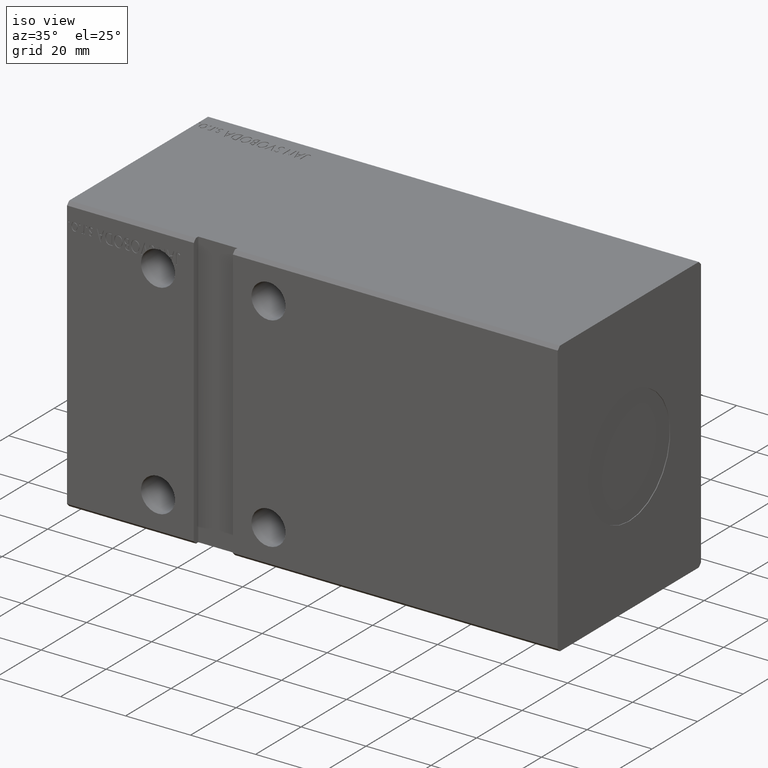
[diagram: clean part render]
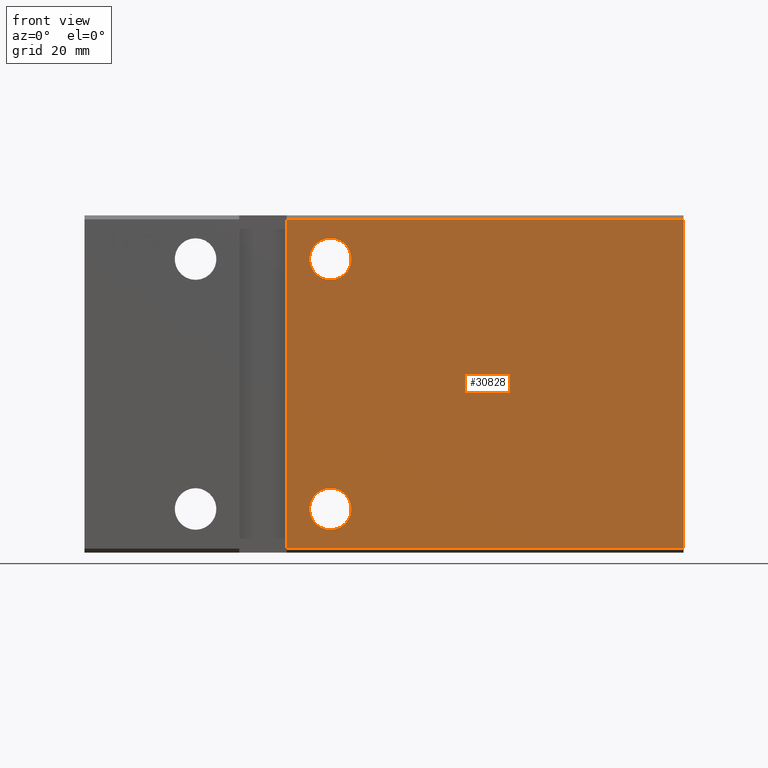
[diagram: tour spotlight — one face highlighted and labeled with its STEP entity id]
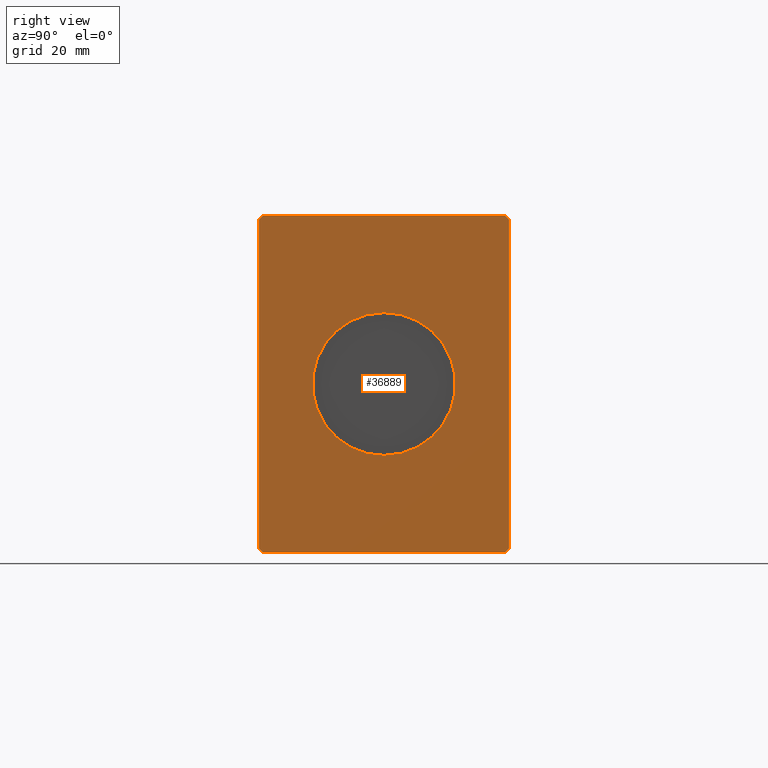
[diagram: tour spotlight — one face highlighted and labeled with its STEP entity id]
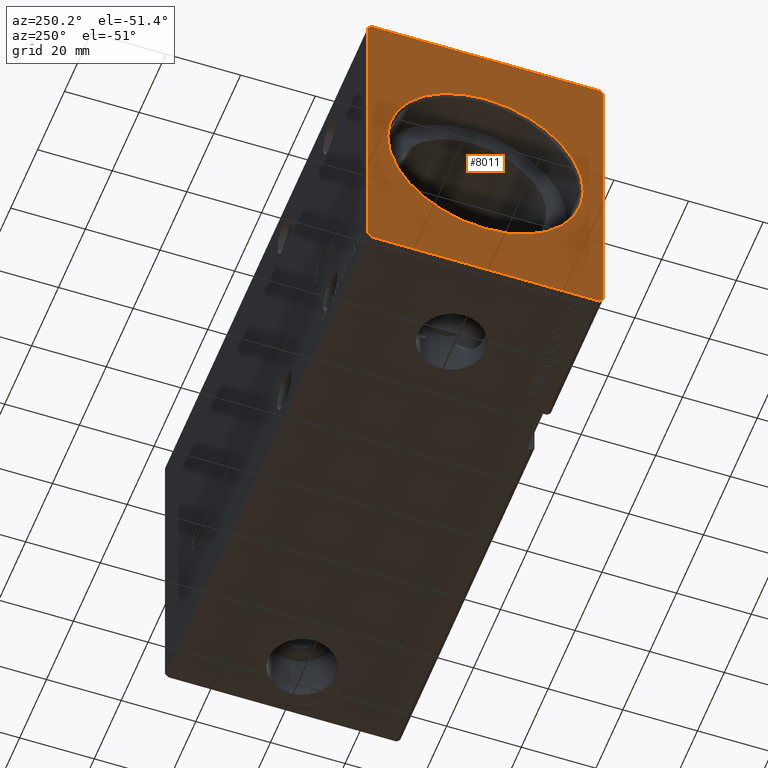
[diagram: tour spotlight — one face highlighted and labeled with its STEP entity id]
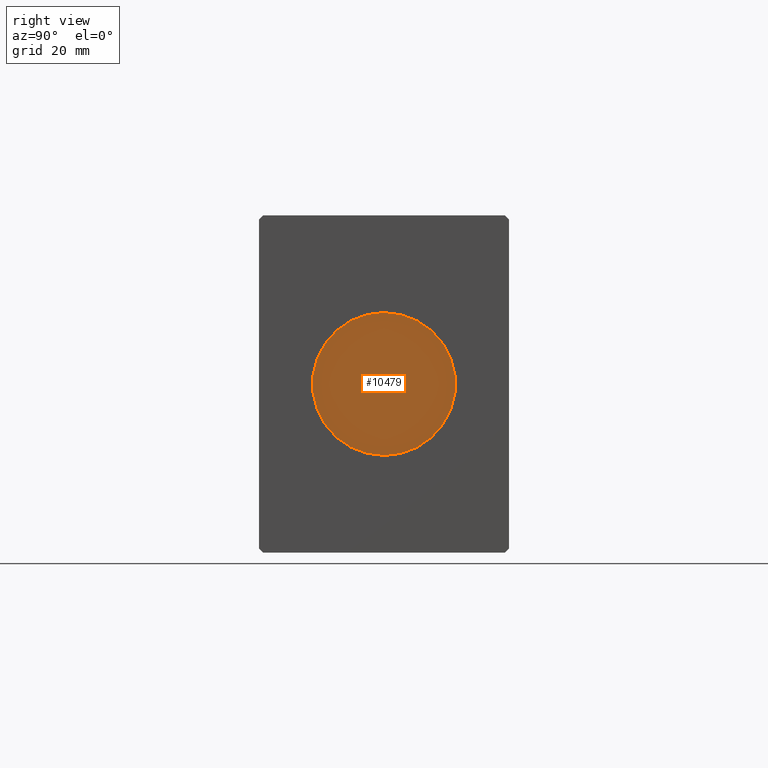
[diagram: tour spotlight — one face highlighted and labeled with its STEP entity id]
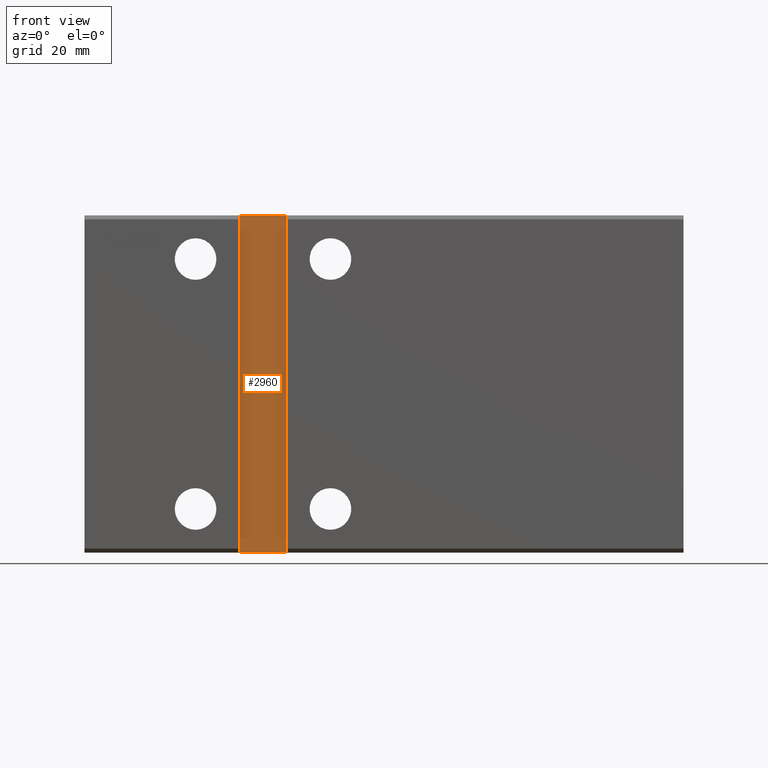
[diagram: tour spotlight — one face highlighted and labeled with its STEP entity id]
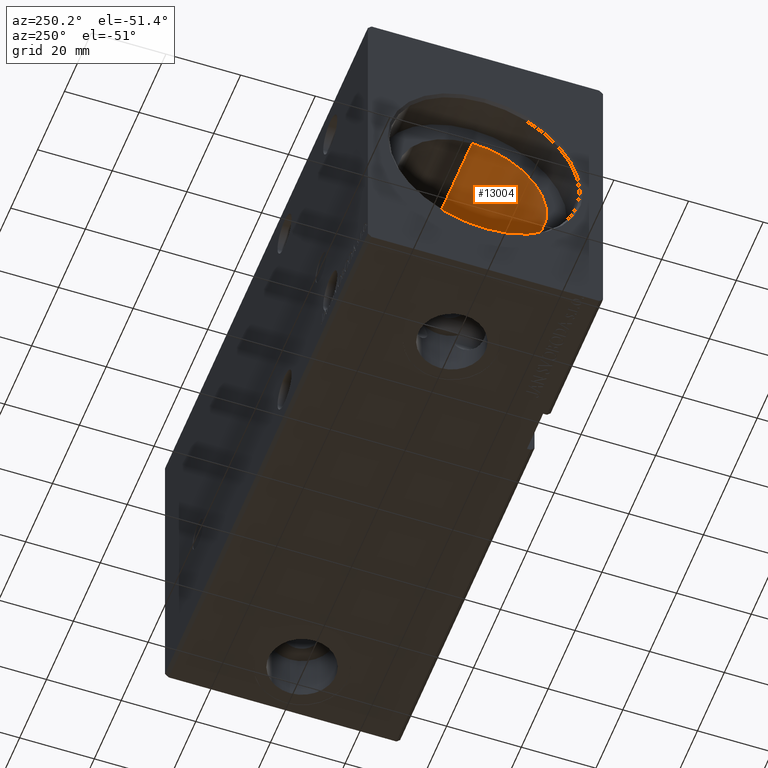
[diagram: tour spotlight — one face highlighted and labeled with its STEP entity id]
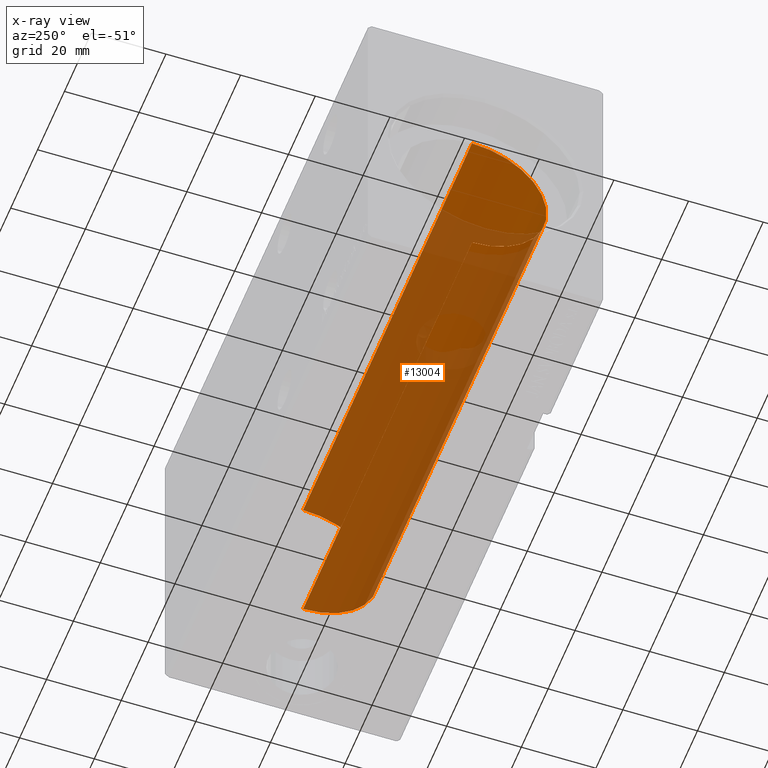
[diagram: x-ray of the same camera — body ghosted, this tour face saturated]
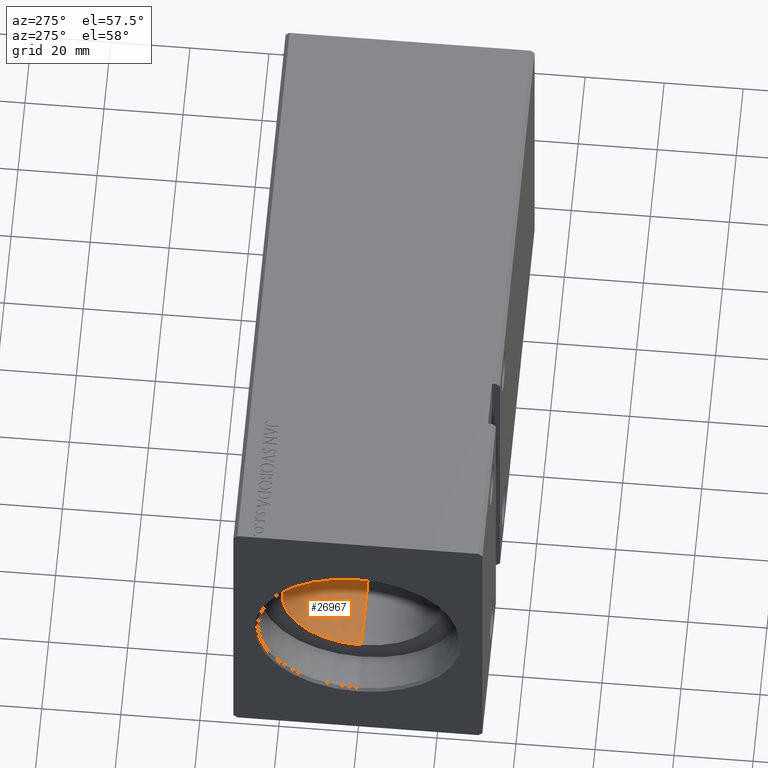
[diagram: tour spotlight — one face highlighted and labeled with its STEP entity id]
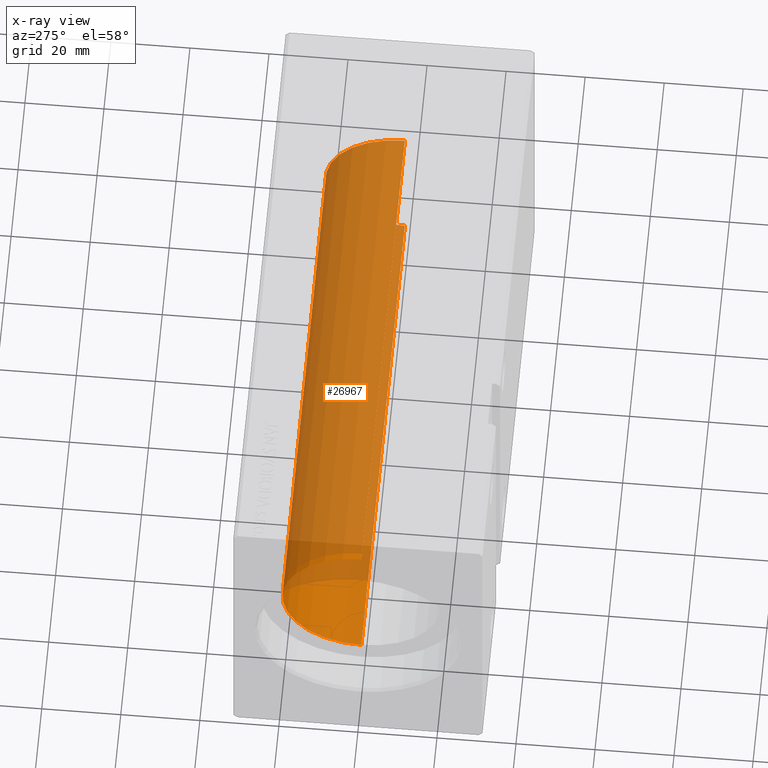
[diagram: x-ray of the same camera — body ghosted, this tour face saturated]
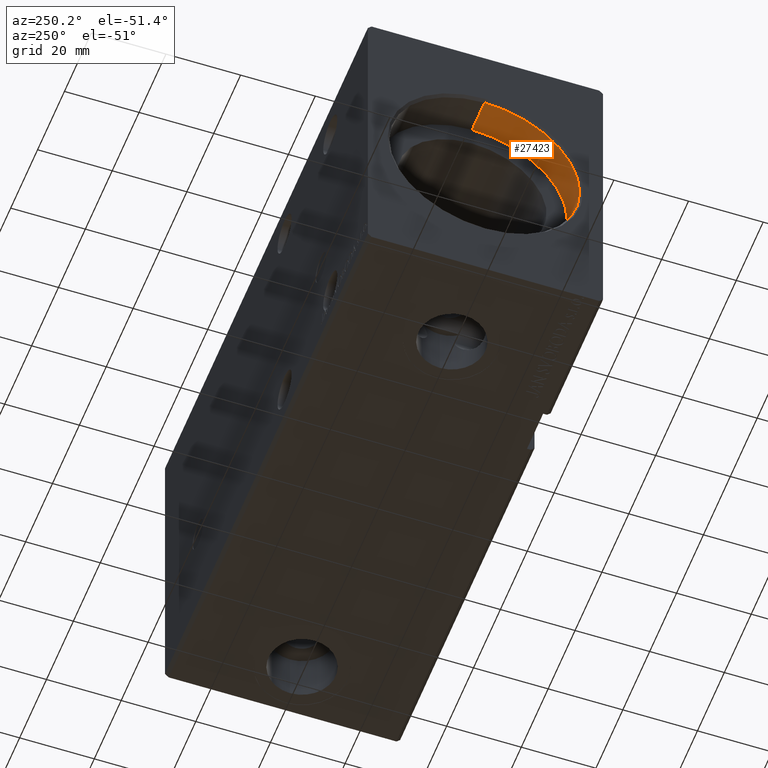
[diagram: tour spotlight — one face highlighted and labeled with its STEP entity id]
A machine part: a face-by-face anatomy tour. The part has 781 B-rep faces; the first image is the clean iso view, then the 8 largest visible faces are spotlighted one at a time (largest first), each with its STEP entity span.

Face 1 — front view, entity #30828. In plain terms, the highlighted planar face has unit normal (-0, 1, 0).
Definition (entity closure, byte-faithful):
#21 = CARTESIAN_POINT ( 'NONE',  ( 51.00000000000000000, -31.50000000000000000, 42.49999999999999289 ) ) ;
#161 = CARTESIAN_POINT ( 'NONE',  ( 151.0000000000000000, -31.50000000000000000, -41.50000000000000711 ) ) ;
#1122 = EDGE_CURVE ( 'NONE', #16240, #39760, #31434, .T. ) ;
#1634 = DIRECTION ( 'NONE',  ( 0.000000000000000000, 0.000000000000000000, 1.000000000000000000 ) ) ;
#1731 = AXIS2_PLACEMENT_3D ( 'NONE', #2849, #28518, #12777 ) ;
#2849 = CARTESIAN_POINT ( 'NONE',  ( 62.00000000000000000, -31.50000000000000000, 31.50000000000000000 ) ) ;
#3452 = VERTEX_POINT ( 'NONE', #31372 ) ;
#4691 = EDGE_CURVE ( 'NONE', #24432, #34464, #39747, .T. ) ;
#4791 = CARTESIAN_POINT ( 'NONE',  ( 51.00000000000000000, -31.50000000000000000, 41.49999999999999289 ) ) ;
#5090 = PLANE ( 'NONE',  #6165 ) ;
#5566 = ORIENTED_EDGE ( 'NONE', *, *, #17554, .T. ) ;
#6165 = AXIS2_PLACEMENT_3D ( 'NONE', #30347, #17505, #27438 ) ;
#7073 = EDGE_CURVE ( 'NONE', #26073, #31954, #15612, .T. ) ;
#7540 = CARTESIAN_POINT ( 'NONE',  ( 62.00000000000000711, -31.50000000000000000, -31.50000000000000000 ) ) ;
#8055 = CARTESIAN_POINT ( 'NONE',  ( 62.00000000000000000, -31.50000000000000000, 31.50000000000000000 ) ) ;
#8486 = DIRECTION ( 'NONE',  ( -0.000000000000000000, 1.000000000000000000, 0.000000000000000000 ) ) ;
#8937 = EDGE_CURVE ( 'NONE', #24432, #16240, #28117, .T. ) ;
#10535 = CIRCLE ( 'NONE', #40273, 5.249999999999997335 ) ;
#11144 = VECTOR ( 'NONE', #18865, 1000.000000000000000 ) ;
#11684 = VECTOR ( 'NONE', #12378, 1000.000000000000000 ) ;
#11700 = FACE_BOUND ( 'NONE', #31167, .T. ) ;
#12049 = LINE ( 'NONE', #21, #11144 ) ;
#12241 = EDGE_LOOP ( 'NONE', ( #32434, #38741 ) ) ;
#12378 = DIRECTION ( 'NONE',  ( 0.000000000000000000, 0.000000000000000000, -1.000000000000000000 ) ) ;
#12693 = AXIS2_PLACEMENT_3D ( 'NONE', #8055, #21293, #1634 ) ;
#12754 = CARTESIAN_POINT ( 'NONE',  ( 151.0000000000000000, -31.50000000000000000, 41.49999999999999289 ) ) ;
#12777 = DIRECTION ( 'NONE',  ( 0.000000000000000000, 0.000000000000000000, 1.000000000000000000 ) ) ;
#14303 = EDGE_LOOP ( 'NONE', ( #24557, #33409, #24911, #27494 ) ) ;
#14661 = CIRCLE ( 'NONE', #23262, 5.249999999999997335 ) ;
#14900 = CARTESIAN_POINT ( 'NONE',  ( 151.0000000000000000, -31.50000000000000000, 41.49999999999999289 ) ) ;
#15612 = CIRCLE ( 'NONE', #1731, 5.250000000000004441 ) ;
#16072 = EDGE_CURVE ( 'NONE', #39760, #34464, #12049, .T. ) ;
#16240 = VERTEX_POINT ( 'NONE', #20300 ) ;
#17408 = VERTEX_POINT ( 'NONE', #22992 ) ;
#17505 = DIRECTION ( 'NONE',  ( -0.000000000000000000, 1.000000000000000000, 0.000000000000000000 ) ) ;
#17554 = EDGE_CURVE ( 'NONE', #3452, #17408, #10535, .T. ) ;
#18010 = DIRECTION ( 'NONE',  ( -1.000000000000000000, -0.000000000000000000, -0.000000000000000000 ) ) ;
#18734 = CARTESIAN_POINT ( 'NONE',  ( 62.00000000000000000, -31.50000000000000000, 36.75000000000000711 ) ) ;
#18865 = DIRECTION ( 'NONE',  ( -0.000000000000000000, -0.000000000000000000, 1.000000000000000000 ) ) ;
#20300 = CARTESIAN_POINT ( 'NONE',  ( 151.0000000000000000, -31.50000000000000000, -41.50000000000000711 ) ) ;
#21098 = CARTESIAN_POINT ( 'NONE',  ( 151.0000000000000000, -31.50000000000000000, 41.49999999999999289 ) ) ;
#21293 = DIRECTION ( 'NONE',  ( 0.000000000000000000, -1.000000000000000000, -0.000000000000000000 ) ) ;
#21697 = DIRECTION ( 'NONE',  ( -1.000000000000000000, -0.000000000000000000, -0.000000000000000000 ) ) ;
#22992 = CARTESIAN_POINT ( 'NONE',  ( 62.00000000000000711, -31.50000000000000000, -36.75000000000000000 ) ) ;
#23262 = AXIS2_PLACEMENT_3D ( 'NONE', #7540, #29281, #29886 ) ;
#23286 = CIRCLE ( 'NONE', #12693, 5.250000000000004441 ) ;
#24432 = VERTEX_POINT ( 'NONE', #12754 ) ;
#24557 = ORIENTED_EDGE ( 'NONE', *, *, #4691, .T. ) ;
#24911 = ORIENTED_EDGE ( 'NONE', *, *, #1122, .F. ) ;
#25299 = EDGE_CURVE ( 'NONE', #17408, #3452, #14661, .T. ) ;
#26073 = VERTEX_POINT ( 'NONE', #18734 ) ;
#26147 = VECTOR ( 'NONE', #18010, 1000.000000000000000 ) ;
#26873 = EDGE_CURVE ( 'NONE', #31954, #26073, #23286, .T. ) ;
#27420 = CARTESIAN_POINT ( 'NONE',  ( 51.00000000000000000, -31.50000000000000000, -41.50000000000000711 ) ) ;
#27438 = DIRECTION ( 'NONE',  ( 0.000000000000000000, -0.000000000000000000, 1.000000000000000000 ) ) ;
#27494 = ORIENTED_EDGE ( 'NONE', *, *, #8937, .F. ) ;
#27727 = CARTESIAN_POINT ( 'NONE',  ( 62.00000000000000711, -31.50000000000000000, -31.50000000000000000 ) ) ;
#27851 = FACE_OUTER_BOUND ( 'NONE', #14303, .T. ) ;
#28117 = LINE ( 'NONE', #21098, #11684 ) ;
#28518 = DIRECTION ( 'NONE',  ( 0.000000000000000000, -1.000000000000000000, -0.000000000000000000 ) ) ;
#29281 = DIRECTION ( 'NONE',  ( -0.000000000000000000, 1.000000000000000000, 0.000000000000000000 ) ) ;
#29886 = DIRECTION ( 'NONE',  ( 0.000000000000000000, 0.000000000000000000, 1.000000000000000000 ) ) ;
#30347 = CARTESIAN_POINT ( 'NONE',  ( 151.0000000000000000, -31.50000000000000000, 41.49999999999999289 ) ) ;
#30758 = FACE_BOUND ( 'NONE', #12241, .T. ) ;
#30828 = ADVANCED_FACE ( 'NONE', ( #11700, #27851, #30758 ), #5090, .F. ) ;
#31167 = EDGE_LOOP ( 'NONE', ( #34243, #5566 ) ) ;
#31372 = CARTESIAN_POINT ( 'NONE',  ( 62.00000000000000711, -31.50000000000000000, -26.25000000000000355 ) ) ;
#31434 = LINE ( 'NONE', #161, #35342 ) ;
#31954 = VERTEX_POINT ( 'NONE', #36726 ) ;
#32434 = ORIENTED_EDGE ( 'NONE', *, *, #26873, .F. ) ;
#33409 = ORIENTED_EDGE ( 'NONE', *, *, #16072, .F. ) ;
#34243 = ORIENTED_EDGE ( 'NONE', *, *, #25299, .T. ) ;
#34464 = VERTEX_POINT ( 'NONE', #4791 ) ;
#35114 = DIRECTION ( 'NONE',  ( 0.000000000000000000, 0.000000000000000000, 1.000000000000000000 ) ) ;
#35342 = VECTOR ( 'NONE', #21697, 1000.000000000000000 ) ;
#36726 = CARTESIAN_POINT ( 'NONE',  ( 62.00000000000000000, -31.50000000000000000, 26.24999999999999645 ) ) ;
#38741 = ORIENTED_EDGE ( 'NONE', *, *, #7073, .F. ) ;
#39747 = LINE ( 'NONE', #14900, #26147 ) ;
#39760 = VERTEX_POINT ( 'NONE', #27420 ) ;
#40273 = AXIS2_PLACEMENT_3D ( 'NONE', #27727, #8486, #35114 ) ;

Face 2 — right view, entity #36889. In plain terms, the highlighted planar face has unit normal (1, 0, 0).
Definition (entity closure, byte-faithful):
#608 = CIRCLE ( 'NONE', #17808, 18.00000000000000000 ) ;
#653 = FACE_OUTER_BOUND ( 'NONE', #39871, .T. ) ;
#851 = VERTEX_POINT ( 'NONE', #28165 ) ;
#1255 = LINE ( 'NONE', #17184, #39058 ) ;
#1699 = EDGE_CURVE ( 'NONE', #40024, #24432, #10565, .T. ) ;
#2937 = EDGE_CURVE ( 'NONE', #851, #23319, #15773, .T. ) ;
#3131 = FACE_BOUND ( 'NONE', #20301, .T. ) ;
#3355 = DIRECTION ( 'NONE',  ( 0.000000000000000000, -0.7071067811865474617, 0.7071067811865474617 ) ) ;
#4254 = ORIENTED_EDGE ( 'NONE', *, *, #1699, .T. ) ;
#4481 = VECTOR ( 'NONE', #28577, 1000.000000000000000 ) ;
#5455 = ORIENTED_EDGE ( 'NONE', *, *, #17410, .F. ) ;
#7008 = CARTESIAN_POINT ( 'NONE',  ( 151.0000000000000000, 30.50000000000001421, 42.49999999999999289 ) ) ;
#7250 = EDGE_CURVE ( 'NONE', #16240, #21967, #36165, .T. ) ;
#8937 = EDGE_CURVE ( 'NONE', #24432, #16240, #28117, .T. ) ;
#9482 = LINE ( 'NONE', #26047, #30394 ) ;
#9737 = CARTESIAN_POINT ( 'NONE',  ( 151.0000000000000000, 0.000000000000000000, 0.000000000000000000 ) ) ;
#10565 = LINE ( 'NONE', #35830, #26087 ) ;
#10969 = DIRECTION ( 'NONE',  ( 0.000000000000000000, 1.000000000000000000, 0.000000000000000000 ) ) ;
#11469 = CARTESIAN_POINT ( 'NONE',  ( 151.0000000000000000, 0.000000000000000000, -18.00000000000000000 ) ) ;
#11684 = VECTOR ( 'NONE', #12378, 1000.000000000000000 ) ;
#12202 = EDGE_CURVE ( 'NONE', #23319, #40024, #33748, .T. ) ;
#12378 = DIRECTION ( 'NONE',  ( 0.000000000000000000, 0.000000000000000000, -1.000000000000000000 ) ) ;
#12754 = CARTESIAN_POINT ( 'NONE',  ( 151.0000000000000000, -31.50000000000000000, 41.49999999999999289 ) ) ;
#13292 = PLANE ( 'NONE',  #26497 ) ;
#13335 = CARTESIAN_POINT ( 'NONE',  ( 151.0000000000000000, 2.204364238465235428E-15, 18.00000000000000000 ) ) ;
#13790 = DIRECTION ( 'NONE',  ( 1.000000000000000000, 0.000000000000000000, 0.000000000000000000 ) ) ;
#15756 = DIRECTION ( 'NONE',  ( 0.000000000000000000, 0.000000000000000000, -1.000000000000000000 ) ) ;
#15773 = LINE ( 'NONE', #28409, #24776 ) ;
#16240 = VERTEX_POINT ( 'NONE', #20300 ) ;
#17184 = CARTESIAN_POINT ( 'NONE',  ( 151.0000000000000000, -30.50000000000000711, -42.50000000000000711 ) ) ;
#17410 = EDGE_CURVE ( 'NONE', #39882, #29924, #608, .T. ) ;
#17601 = VECTOR ( 'NONE', #39884, 1000.000000000000114 ) ;
#17740 = VECTOR ( 'NONE', #19481, 999.9999999999998863 ) ;
#17808 = AXIS2_PLACEMENT_3D ( 'NONE', #9737, #38933, #35004 ) ;
#18088 = EDGE_CURVE ( 'NONE', #33056, #31503, #25488, .T. ) ;
#18970 = ORIENTED_EDGE ( 'NONE', *, *, #40383, .T. ) ;
#19481 = DIRECTION ( 'NONE',  ( 0.000000000000000000, 0.7071067811865462405, 0.7071067811865489050 ) ) ;
#20300 = CARTESIAN_POINT ( 'NONE',  ( 151.0000000000000000, -31.50000000000000000, -41.50000000000000711 ) ) ;
#20301 = EDGE_LOOP ( 'NONE', ( #29410, #5455 ) ) ;
#21098 = CARTESIAN_POINT ( 'NONE',  ( 151.0000000000000000, -31.50000000000000000, 41.49999999999999289 ) ) ;
#21967 = VERTEX_POINT ( 'NONE', #33548 ) ;
#22699 = DIRECTION ( 'NONE',  ( 0.000000000000000000, 0.000000000000000000, -1.000000000000000000 ) ) ;
#23319 = VERTEX_POINT ( 'NONE', #7008 ) ;
#23335 = EDGE_CURVE ( 'NONE', #31503, #851, #9482, .T. ) ;
#24432 = VERTEX_POINT ( 'NONE', #12754 ) ;
#24496 = CIRCLE ( 'NONE', #35721, 18.00000000000000000 ) ;
#24776 = VECTOR ( 'NONE', #3355, 1000.000000000000114 ) ;
#25488 = LINE ( 'NONE', #35012, #17740 ) ;
#25910 = CARTESIAN_POINT ( 'NONE',  ( 151.0000000000000000, 0.000000000000000000, 0.000000000000000000 ) ) ;
#26047 = CARTESIAN_POINT ( 'NONE',  ( 151.0000000000000000, 31.50000000000001421, -41.50000000000000711 ) ) ;
#26087 = VECTOR ( 'NONE', #32922, 999.9999999999998863 ) ;
#26364 = ORIENTED_EDGE ( 'NONE', *, *, #18088, .T. ) ;
#26497 = AXIS2_PLACEMENT_3D ( 'NONE', #25910, #38541, #15756 ) ;
#27043 = CARTESIAN_POINT ( 'NONE',  ( 151.0000000000000000, -31.50000000000000000, -41.50000000000000711 ) ) ;
#27751 = CARTESIAN_POINT ( 'NONE',  ( 151.0000000000000000, 31.50000000000001421, -41.50000000000000711 ) ) ;
#28117 = LINE ( 'NONE', #21098, #11684 ) ;
#28165 = CARTESIAN_POINT ( 'NONE',  ( 151.0000000000000000, 31.50000000000001421, 41.49999999999999289 ) ) ;
#28409 = CARTESIAN_POINT ( 'NONE',  ( 151.0000000000000000, 31.50000000000001421, 41.49999999999999289 ) ) ;
#28452 = ORIENTED_EDGE ( 'NONE', *, *, #2937, .T. ) ;
#28577 = DIRECTION ( 'NONE',  ( 0.000000000000000000, -1.000000000000000000, 0.000000000000000000 ) ) ;
#29410 = ORIENTED_EDGE ( 'NONE', *, *, #35645, .F. ) ;
#29924 = VERTEX_POINT ( 'NONE', #11469 ) ;
#30394 = VECTOR ( 'NONE', #38674, 1000.000000000000000 ) ;
#31503 = VERTEX_POINT ( 'NONE', #27751 ) ;
#32575 = CARTESIAN_POINT ( 'NONE',  ( 151.0000000000000000, -30.50000000000000355, 42.49999999999999289 ) ) ;
#32922 = DIRECTION ( 'NONE',  ( 0.000000000000000000, -0.7071067811865462405, -0.7071067811865489050 ) ) ;
#33056 = VERTEX_POINT ( 'NONE', #39443 ) ;
#33548 = CARTESIAN_POINT ( 'NONE',  ( 151.0000000000000000, -30.50000000000000711, -42.50000000000000711 ) ) ;
#33748 = LINE ( 'NONE', #35611, #4481 ) ;
#34278 = ORIENTED_EDGE ( 'NONE', *, *, #12202, .T. ) ;
#35004 = DIRECTION ( 'NONE',  ( 0.000000000000000000, 0.000000000000000000, -1.000000000000000000 ) ) ;
#35012 = CARTESIAN_POINT ( 'NONE',  ( 151.0000000000000000, 30.50000000000001776, -42.50000000000000711 ) ) ;
#35299 = ORIENTED_EDGE ( 'NONE', *, *, #7250, .T. ) ;
#35326 = CARTESIAN_POINT ( 'NONE',  ( 151.0000000000000000, 0.000000000000000000, 0.000000000000000000 ) ) ;
#35611 = CARTESIAN_POINT ( 'NONE',  ( 151.0000000000000000, 30.50000000000001421, 42.49999999999999289 ) ) ;
#35645 = EDGE_CURVE ( 'NONE', #29924, #39882, #24496, .T. ) ;
#35721 = AXIS2_PLACEMENT_3D ( 'NONE', #35326, #13790, #22699 ) ;
#35830 = CARTESIAN_POINT ( 'NONE',  ( 151.0000000000000000, -30.50000000000000355, 42.49999999999999289 ) ) ;
#36165 = LINE ( 'NONE', #27043, #17601 ) ;
#36889 = ADVANCED_FACE ( 'NONE', ( #3131, #653 ), #13292, .T. ) ;
#38541 = DIRECTION ( 'NONE',  ( 1.000000000000000000, 0.000000000000000000, 0.000000000000000000 ) ) ;
#38674 = DIRECTION ( 'NONE',  ( 0.000000000000000000, 0.000000000000000000, 1.000000000000000000 ) ) ;
#38855 = ORIENTED_EDGE ( 'NONE', *, *, #8937, .T. ) ;
#38933 = DIRECTION ( 'NONE',  ( 1.000000000000000000, 0.000000000000000000, 0.000000000000000000 ) ) ;
#39058 = VECTOR ( 'NONE', #10969, 1000.000000000000000 ) ;
#39443 = CARTESIAN_POINT ( 'NONE',  ( 151.0000000000000000, 30.50000000000001776, -42.50000000000000711 ) ) ;
#39541 = ORIENTED_EDGE ( 'NONE', *, *, #23335, .T. ) ;
#39871 = EDGE_LOOP ( 'NONE', ( #28452, #34278, #4254, #38855, #35299, #18970, #26364, #39541 ) ) ;
#39882 = VERTEX_POINT ( 'NONE', #13335 ) ;
#39884 = DIRECTION ( 'NONE',  ( 0.000000000000000000, 0.7071067811865451302, -0.7071067811865500152 ) ) ;
#40024 = VERTEX_POINT ( 'NONE', #32575 ) ;
#40383 = EDGE_CURVE ( 'NONE', #21967, #33056, #1255, .T. ) ;

Face 3 — auxiliary view, entity #8011. In plain terms, the highlighted planar face has unit normal (1, 0, 0).
Definition (entity closure, byte-faithful):
#2302 = VECTOR ( 'NONE', #32851, 1000.000000000000114 ) ;
#2478 = CARTESIAN_POINT ( 'NONE',  ( 0.000000000000000000, -30.50000000000000711, -42.50000000000000711 ) ) ;
#2537 = EDGE_CURVE ( 'NONE', #10834, #6726, #21885, .T. ) ;
#3071 = DIRECTION ( 'NONE',  ( 0.000000000000000000, -0.7071067811865474617, 0.7071067811865474617 ) ) ;
#3164 = EDGE_CURVE ( 'NONE', #38446, #25274, #13566, .T. ) ;
#4001 = LINE ( 'NONE', #29053, #12409 ) ;
#4748 = EDGE_CURVE ( 'NONE', #32983, #19713, #37449, .T. ) ;
#4803 = VERTEX_POINT ( 'NONE', #32268 ) ;
#5472 = DIRECTION ( 'NONE',  ( 0.000000000000000000, 0.000000000000000000, -1.000000000000000000 ) ) ;
#5601 = DIRECTION ( 'NONE',  ( 0.000000000000000000, -1.000000000000000000, 0.000000000000000000 ) ) ;
#5755 = DIRECTION ( 'NONE',  ( 0.000000000000000000, 0.000000000000000000, -1.000000000000000000 ) ) ;
#5960 = DIRECTION ( 'NONE',  ( 1.000000000000000000, 0.000000000000000000, 0.000000000000000000 ) ) ;
#5985 = ORIENTED_EDGE ( 'NONE', *, *, #12047, .F. ) ;
#6298 = ORIENTED_EDGE ( 'NONE', *, *, #33387, .F. ) ;
#6726 = VERTEX_POINT ( 'NONE', #28565 ) ;
#6977 = LINE ( 'NONE', #16894, #9227 ) ;
#7012 = CARTESIAN_POINT ( 'NONE',  ( 0.000000000000000000, 31.50000000000001421, 41.49999999999999289 ) ) ;
#8011 = ADVANCED_FACE ( 'NONE', ( #29948, #39684 ), #11516, .F. ) ;
#9227 = VECTOR ( 'NONE', #29326, 999.9999999999998863 ) ;
#9579 = AXIS2_PLACEMENT_3D ( 'NONE', #12162, #5960, #21490 ) ;
#9799 = EDGE_CURVE ( 'NONE', #25274, #38446, #23593, .T. ) ;
#10834 = VERTEX_POINT ( 'NONE', #19927 ) ;
#11270 = VECTOR ( 'NONE', #39750, 1000.000000000000000 ) ;
#11516 = PLANE ( 'NONE',  #38798 ) ;
#11872 = DIRECTION ( 'NONE',  ( 1.000000000000000000, 0.000000000000000000, 0.000000000000000000 ) ) ;
#12047 = EDGE_CURVE ( 'NONE', #21158, #32983, #4001, .T. ) ;
#12162 = CARTESIAN_POINT ( 'NONE',  ( 0.000000000000000000, 0.000000000000000000, 0.000000000000000000 ) ) ;
#12409 = VECTOR ( 'NONE', #26352, 1000.000000000000000 ) ;
#13257 = EDGE_CURVE ( 'NONE', #31756, #21158, #24809, .T. ) ;
#13566 = CIRCLE ( 'NONE', #9579, 26.20000000000002771 ) ;
#13894 = ORIENTED_EDGE ( 'NONE', *, *, #4748, .F. ) ;
#14058 = CARTESIAN_POINT ( 'NONE',  ( 0.000000000000000000, 30.50000000000001776, -42.50000000000000711 ) ) ;
#14613 = ORIENTED_EDGE ( 'NONE', *, *, #9799, .T. ) ;
#14632 = EDGE_LOOP ( 'NONE', ( #14613, #32606 ) ) ;
#16894 = CARTESIAN_POINT ( 'NONE',  ( 0.000000000000000000, -30.50000000000000355, 42.49999999999999289 ) ) ;
#17731 = CARTESIAN_POINT ( 'NONE',  ( 0.000000000000000000, 0.000000000000000000, 0.000000000000000000 ) ) ;
#17943 = DIRECTION ( 'NONE',  ( 0.000000000000000000, 0.000000000000000000, -1.000000000000000000 ) ) ;
#18012 = CARTESIAN_POINT ( 'NONE',  ( 0.000000000000000000, -30.50000000000000355, 42.49999999999999289 ) ) ;
#19713 = VERTEX_POINT ( 'NONE', #24050 ) ;
#19927 = CARTESIAN_POINT ( 'NONE',  ( 0.000000000000000000, -31.50000000000000000, -41.50000000000000711 ) ) ;
#21158 = VERTEX_POINT ( 'NONE', #40901 ) ;
#21490 = DIRECTION ( 'NONE',  ( 0.000000000000000000, 0.000000000000000000, -1.000000000000000000 ) ) ;
#21885 = LINE ( 'NONE', #39059, #2302 ) ;
#22568 = ORIENTED_EDGE ( 'NONE', *, *, #33924, .F. ) ;
#22797 = ORIENTED_EDGE ( 'NONE', *, *, #40463, .F. ) ;
#23593 = CIRCLE ( 'NONE', #30218, 26.20000000000002771 ) ;
#24050 = CARTESIAN_POINT ( 'NONE',  ( 0.000000000000000000, 30.50000000000001421, 42.49999999999999289 ) ) ;
#24299 = CARTESIAN_POINT ( 'NONE',  ( 0.000000000000000000, 0.000000000000000000, 0.000000000000000000 ) ) ;
#24382 = CARTESIAN_POINT ( 'NONE',  ( 0.000000000000000000, -31.50000000000000000, 41.49999999999999289 ) ) ;
#24435 = LINE ( 'NONE', #27942, #28412 ) ;
#24809 = LINE ( 'NONE', #40151, #25658 ) ;
#24862 = EDGE_CURVE ( 'NONE', #4803, #10834, #37019, .T. ) ;
#25274 = VERTEX_POINT ( 'NONE', #26775 ) ;
#25658 = VECTOR ( 'NONE', #37446, 999.9999999999998863 ) ;
#26352 = DIRECTION ( 'NONE',  ( 0.000000000000000000, 0.000000000000000000, 1.000000000000000000 ) ) ;
#26775 = CARTESIAN_POINT ( 'NONE',  ( 0.000000000000000000, 0.000000000000000000, 26.20000000000002771 ) ) ;
#27074 = ORIENTED_EDGE ( 'NONE', *, *, #2537, .F. ) ;
#27357 = CARTESIAN_POINT ( 'NONE',  ( 0.000000000000000000, 31.50000000000001421, 41.49999999999999289 ) ) ;
#27942 = CARTESIAN_POINT ( 'NONE',  ( 0.000000000000000000, 30.50000000000001421, 42.49999999999999289 ) ) ;
#28412 = VECTOR ( 'NONE', #5601, 1000.000000000000000 ) ;
#28565 = CARTESIAN_POINT ( 'NONE',  ( 0.000000000000000000, -30.50000000000000711, -42.50000000000000711 ) ) ;
#29053 = CARTESIAN_POINT ( 'NONE',  ( 0.000000000000000000, 31.50000000000001421, -41.50000000000000711 ) ) ;
#29326 = DIRECTION ( 'NONE',  ( 0.000000000000000000, -0.7071067811865462405, -0.7071067811865489050 ) ) ;
#29452 = VECTOR ( 'NONE', #3071, 1000.000000000000114 ) ;
#29845 = VECTOR ( 'NONE', #5755, 1000.000000000000000 ) ;
#29948 = FACE_BOUND ( 'NONE', #14632, .T. ) ;
#30218 = AXIS2_PLACEMENT_3D ( 'NONE', #24299, #11872, #5472 ) ;
#31756 = VERTEX_POINT ( 'NONE', #14058 ) ;
#32268 = CARTESIAN_POINT ( 'NONE',  ( 0.000000000000000000, -31.50000000000000000, 41.49999999999999289 ) ) ;
#32606 = ORIENTED_EDGE ( 'NONE', *, *, #3164, .T. ) ;
#32851 = DIRECTION ( 'NONE',  ( 0.000000000000000000, 0.7071067811865451302, -0.7071067811865500152 ) ) ;
#32983 = VERTEX_POINT ( 'NONE', #27357 ) ;
#33387 = EDGE_CURVE ( 'NONE', #19713, #40414, #24435, .T. ) ;
#33924 = EDGE_CURVE ( 'NONE', #40414, #4803, #6977, .T. ) ;
#33949 = LINE ( 'NONE', #2478, #11270 ) ;
#34548 = ORIENTED_EDGE ( 'NONE', *, *, #13257, .F. ) ;
#36002 = EDGE_LOOP ( 'NONE', ( #13894, #5985, #34548, #22797, #27074, #36769, #22568, #6298 ) ) ;
#36769 = ORIENTED_EDGE ( 'NONE', *, *, #24862, .F. ) ;
#37019 = LINE ( 'NONE', #24382, #29845 ) ;
#37446 = DIRECTION ( 'NONE',  ( 0.000000000000000000, 0.7071067811865462405, 0.7071067811865489050 ) ) ;
#37449 = LINE ( 'NONE', #7012, #29452 ) ;
#38446 = VERTEX_POINT ( 'NONE', #40498 ) ;
#38798 = AXIS2_PLACEMENT_3D ( 'NONE', #17731, #40090, #17943 ) ;
#39059 = CARTESIAN_POINT ( 'NONE',  ( 0.000000000000000000, -31.50000000000000000, -41.50000000000000711 ) ) ;
#39684 = FACE_OUTER_BOUND ( 'NONE', #36002, .T. ) ;
#39750 = DIRECTION ( 'NONE',  ( 0.000000000000000000, 1.000000000000000000, 0.000000000000000000 ) ) ;
#40090 = DIRECTION ( 'NONE',  ( 1.000000000000000000, 0.000000000000000000, 0.000000000000000000 ) ) ;
#40151 = CARTESIAN_POINT ( 'NONE',  ( 0.000000000000000000, 30.50000000000001776, -42.50000000000000711 ) ) ;
#40414 = VERTEX_POINT ( 'NONE', #18012 ) ;
#40463 = EDGE_CURVE ( 'NONE', #6726, #31756, #33949, .T. ) ;
#40498 = CARTESIAN_POINT ( 'NONE',  ( 0.000000000000000000, 3.208574613766068455E-15, -26.20000000000002771 ) ) ;
#40901 = CARTESIAN_POINT ( 'NONE',  ( 0.000000000000000000, 31.50000000000001421, -41.50000000000000711 ) ) ;

Face 4 — right view, entity #10479. In plain terms, the highlighted planar face has unit normal (1, 0, 0).
Definition (entity closure, byte-faithful):
#2214 = DIRECTION ( 'NONE',  ( 0.000000000000000000, 0.000000000000000000, -1.000000000000000000 ) ) ;
#3321 = DIRECTION ( 'NONE',  ( 0.000000000000000000, 0.000000000000000000, -1.000000000000000000 ) ) ;
#3742 = CARTESIAN_POINT ( 'NONE',  ( 150.7999999999999829, 0.000000000000000000, 0.000000000000000000 ) ) ;
#4089 = DIRECTION ( 'NONE',  ( 1.000000000000000000, 0.000000000000000000, 0.000000000000000000 ) ) ;
#4649 = CARTESIAN_POINT ( 'NONE',  ( 150.7999999999999829, 2.204364238465235428E-15, 18.00000000000000000 ) ) ;
#7425 = EDGE_LOOP ( 'NONE', ( #39784, #35222 ) ) ;
#8422 = CARTESIAN_POINT ( 'NONE',  ( 150.7999999999999829, 0.000000000000000000, 0.000000000000000000 ) ) ;
#10302 = DIRECTION ( 'NONE',  ( 0.000000000000000000, 0.000000000000000000, -1.000000000000000000 ) ) ;
#10479 = ADVANCED_FACE ( 'NONE', ( #10500 ), #23134, .T. ) ;
#10500 = FACE_OUTER_BOUND ( 'NONE', #7425, .T. ) ;
#14525 = AXIS2_PLACEMENT_3D ( 'NONE', #3742, #16365, #3321 ) ;
#15747 = CIRCLE ( 'NONE', #16439, 18.00000000000000000 ) ;
#16365 = DIRECTION ( 'NONE',  ( 1.000000000000000000, 0.000000000000000000, 0.000000000000000000 ) ) ;
#16439 = AXIS2_PLACEMENT_3D ( 'NONE', #8422, #33479, #2214 ) ;
#20238 = EDGE_CURVE ( 'NONE', #38815, #39511, #15747, .T. ) ;
#23053 = EDGE_CURVE ( 'NONE', #39511, #38815, #36335, .T. ) ;
#23134 = PLANE ( 'NONE',  #29569 ) ;
#23336 = CARTESIAN_POINT ( 'NONE',  ( 150.7999999999999829, 0.000000000000000000, 0.000000000000000000 ) ) ;
#27721 = CARTESIAN_POINT ( 'NONE',  ( 150.7999999999999829, 0.000000000000000000, -18.00000000000000000 ) ) ;
#29569 = AXIS2_PLACEMENT_3D ( 'NONE', #23336, #4089, #10302 ) ;
#33479 = DIRECTION ( 'NONE',  ( 1.000000000000000000, 0.000000000000000000, 0.000000000000000000 ) ) ;
#35222 = ORIENTED_EDGE ( 'NONE', *, *, #20238, .T. ) ;
#36335 = CIRCLE ( 'NONE', #14525, 18.00000000000000000 ) ;
#38815 = VERTEX_POINT ( 'NONE', #4649 ) ;
#39511 = VERTEX_POINT ( 'NONE', #27721 ) ;
#39784 = ORIENTED_EDGE ( 'NONE', *, *, #23053, .T. ) ;

Face 5 — front view, entity #2960. In plain terms, the highlighted planar face has unit normal (0, -1, 0).
Definition (entity closure, byte-faithful):
#1109 = ORIENTED_EDGE ( 'NONE', *, *, #9689, .T. ) ;
#1853 = EDGE_CURVE ( 'NONE', #37754, #20565, #28328, .T. ) ;
#2414 = DIRECTION ( 'NONE',  ( 2.449021377849609697E-16, 0.000000000000000000, -1.000000000000000000 ) ) ;
#2960 = ADVANCED_FACE ( 'NONE', ( #31519 ), #18686, .T. ) ;
#3488 = CARTESIAN_POINT ( 'NONE',  ( 39.00000000000002132, -29.50000000000000000, -42.50000000000000711 ) ) ;
#7307 = EDGE_CURVE ( 'NONE', #28001, #37754, #30774, .T. ) ;
#7954 = DIRECTION ( 'NONE',  ( -0.000000000000000000, -0.000000000000000000, 1.000000000000000000 ) ) ;
#9666 = VECTOR ( 'NONE', #2414, 1000.000000000000000 ) ;
#9689 = EDGE_CURVE ( 'NONE', #20565, #39833, #26783, .T. ) ;
#11397 = CARTESIAN_POINT ( 'NONE',  ( 39.00000000000002132, -29.50000000000000000, -42.50000000000000711 ) ) ;
#11609 = DIRECTION ( 'NONE',  ( -1.000000000000000000, -0.000000000000000000, -0.000000000000000000 ) ) ;
#12214 = VECTOR ( 'NONE', #22111, 1000.000000000000000 ) ;
#14235 = AXIS2_PLACEMENT_3D ( 'NONE', #30915, #21591, #40438 ) ;
#14521 = LINE ( 'NONE', #36878, #17367 ) ;
#16804 = CARTESIAN_POINT ( 'NONE',  ( 39.00000000000000000, -29.50000000000000000, 42.49999999999999289 ) ) ;
#17264 = CARTESIAN_POINT ( 'NONE',  ( 51.00000000000000000, -29.50000000000000000, 42.49999999999999289 ) ) ;
#17367 = VECTOR ( 'NONE', #11609, 1000.000000000000000 ) ;
#18318 = VECTOR ( 'NONE', #7954, 1000.000000000000000 ) ;
#18686 = PLANE ( 'NONE',  #14235 ) ;
#19733 = CARTESIAN_POINT ( 'NONE',  ( 51.00000000000000000, -29.50000000000000000, 42.49999999999999289 ) ) ;
#20565 = VERTEX_POINT ( 'NONE', #40252 ) ;
#21591 = DIRECTION ( 'NONE',  ( 0.000000000000000000, -1.000000000000000000, 0.000000000000000000 ) ) ;
#22111 = DIRECTION ( 'NONE',  ( 1.000000000000000000, 0.000000000000000000, 0.000000000000000000 ) ) ;
#24723 = EDGE_LOOP ( 'NONE', ( #1109, #33774, #30554, #25485 ) ) ;
#25485 = ORIENTED_EDGE ( 'NONE', *, *, #1853, .T. ) ;
#26783 = LINE ( 'NONE', #17264, #18318 ) ;
#28001 = VERTEX_POINT ( 'NONE', #16804 ) ;
#28064 = EDGE_CURVE ( 'NONE', #39833, #28001, #14521, .T. ) ;
#28328 = LINE ( 'NONE', #3488, #12214 ) ;
#30554 = ORIENTED_EDGE ( 'NONE', *, *, #7307, .T. ) ;
#30774 = LINE ( 'NONE', #40293, #9666 ) ;
#30915 = CARTESIAN_POINT ( 'NONE',  ( 0.000000000000000000, -29.50000000000000000, 1.101411730778925047E-16 ) ) ;
#31519 = FACE_OUTER_BOUND ( 'NONE', #24723, .T. ) ;
#33774 = ORIENTED_EDGE ( 'NONE', *, *, #28064, .T. ) ;
#36878 = CARTESIAN_POINT ( 'NONE',  ( 39.00000000000000000, -29.50000000000000000, 42.49999999999999289 ) ) ;
#37754 = VERTEX_POINT ( 'NONE', #11397 ) ;
#39833 = VERTEX_POINT ( 'NONE', #19733 ) ;
#40252 = CARTESIAN_POINT ( 'NONE',  ( 51.00000000000000000, -29.50000000000000000, -42.50000000000000711 ) ) ;
#40293 = CARTESIAN_POINT ( 'NONE',  ( 39.00000000000000000, -29.50000000000000000, 42.49999999999999289 ) ) ;
#40438 = DIRECTION ( 'NONE',  ( 0.000000000000000000, -0.000000000000000000, -1.000000000000000000 ) ) ;

Face 6 — auxiliary view, entity #13004. An x-ray twin of the same camera follows (body ghosted, this face saturated) — the face is partly hidden behind the body. In plain terms, the highlighted cylindrical surface (partial cylindrical patch) has radius 20 mm, axis along (-1, -0, -0).
Definition (entity closure, byte-faithful):
#68 = EDGE_CURVE ( 'NONE', #36604, #1466, #24756, .T. ) ;
#214 = DIRECTION ( 'NONE',  ( 0.000000000000000000, 0.000000000000000000, 1.000000000000000000 ) ) ;
#1466 = VERTEX_POINT ( 'NONE', #14137 ) ;
#2670 = CIRCLE ( 'NONE', #23251, 20.00000000000000000 ) ;
#3165 = AXIS2_PLACEMENT_3D ( 'NONE', #25475, #32516, #214 ) ;
#3832 = CIRCLE ( 'NONE', #38197, 20.00000000000000000 ) ;
#4655 = DIRECTION ( 'NONE',  ( 0.000000000000000000, 0.000000000000000000, 1.000000000000000000 ) ) ;
#4856 = DIRECTION ( 'NONE',  ( 0.000000000000000000, 0.000000000000000000, 1.000000000000000000 ) ) ;
#5287 = ORIENTED_EDGE ( 'NONE', *, *, #11991, .T. ) ;
#5301 = VERTEX_POINT ( 'NONE', #38942 ) ;
#5811 = VECTOR ( 'NONE', #13331, 1000.000000000000000 ) ;
#6604 = ORIENTED_EDGE ( 'NONE', *, *, #68, .F. ) ;
#7505 = ORIENTED_EDGE ( 'NONE', *, *, #11663, .T. ) ;
#7529 = VERTEX_POINT ( 'NONE', #11465 ) ;
#11465 = CARTESIAN_POINT ( 'NONE',  ( 135.6999999999999886, 2.449293598294706513E-15, -20.00000000000000000 ) ) ;
#11663 = EDGE_CURVE ( 'NONE', #5301, #1466, #3832, .T. ) ;
#11991 = EDGE_CURVE ( 'NONE', #7529, #5301, #19936, .T. ) ;
#13004 = ADVANCED_FACE ( 'NONE', ( #16366 ), #35000, .F. ) ;
#13331 = DIRECTION ( 'NONE',  ( -1.000000000000000000, -0.000000000000000000, -0.000000000000000000 ) ) ;
#14137 = CARTESIAN_POINT ( 'NONE',  ( 10.00000000000000888, 0.000000000000000000, 20.00000000000000000 ) ) ;
#14588 = DIRECTION ( 'NONE',  ( -1.000000000000000000, 0.000000000000000000, 0.000000000000000000 ) ) ;
#14683 = CARTESIAN_POINT ( 'NONE',  ( 135.6999999999999886, 0.000000000000000000, 20.00000000000000000 ) ) ;
#16213 = VECTOR ( 'NONE', #18549, 1000.000000000000000 ) ;
#16366 = FACE_OUTER_BOUND ( 'NONE', #33839, .T. ) ;
#16420 = CARTESIAN_POINT ( 'NONE',  ( 135.6999999999999886, 2.449293598294706513E-15, -20.00000000000000000 ) ) ;
#18549 = DIRECTION ( 'NONE',  ( -1.000000000000000000, -0.000000000000000000, -0.000000000000000000 ) ) ;
#19936 = LINE ( 'NONE', #16420, #5811 ) ;
#23251 = AXIS2_PLACEMENT_3D ( 'NONE', #32613, #14588, #4856 ) ;
#24756 = LINE ( 'NONE', #14683, #16213 ) ;
#25475 = CARTESIAN_POINT ( 'NONE',  ( 135.6999999999999886, 0.000000000000000000, 0.000000000000000000 ) ) ;
#32516 = DIRECTION ( 'NONE',  ( -1.000000000000000000, -0.000000000000000000, -0.000000000000000000 ) ) ;
#32613 = CARTESIAN_POINT ( 'NONE',  ( 135.6999999999999886, 0.000000000000000000, 0.000000000000000000 ) ) ;
#33023 = CARTESIAN_POINT ( 'NONE',  ( 10.00000000000000888, 0.000000000000000000, 0.000000000000000000 ) ) ;
#33839 = EDGE_LOOP ( 'NONE', ( #36255, #5287, #7505, #6604 ) ) ;
#35000 = CYLINDRICAL_SURFACE ( 'NONE', #3165, 20.00000000000000000 ) ;
#35720 = DIRECTION ( 'NONE',  ( -1.000000000000000000, 0.000000000000000000, 0.000000000000000000 ) ) ;
#36255 = ORIENTED_EDGE ( 'NONE', *, *, #38711, .F. ) ;
#36604 = VERTEX_POINT ( 'NONE', #39402 ) ;
#38197 = AXIS2_PLACEMENT_3D ( 'NONE', #33023, #35720, #4655 ) ;
#38711 = EDGE_CURVE ( 'NONE', #7529, #36604, #2670, .T. ) ;
#38942 = CARTESIAN_POINT ( 'NONE',  ( 10.00000000000000888, 2.449293598294706513E-15, -20.00000000000000000 ) ) ;
#39402 = CARTESIAN_POINT ( 'NONE',  ( 135.6999999999999886, 0.000000000000000000, 20.00000000000000000 ) ) ;

Face 7 — auxiliary view, entity #26967. An x-ray twin of the same camera follows (body ghosted, this face saturated) — the face is partly hidden behind the body. In plain terms, the highlighted cylindrical surface (partial cylindrical patch) has radius 20 mm, axis along (-1, -0, -0).
Definition (entity closure, byte-faithful):
#68 = EDGE_CURVE ( 'NONE', #36604, #1466, #24756, .T. ) ;
#884 = AXIS2_PLACEMENT_3D ( 'NONE', #37420, #9047, #15066 ) ;
#1466 = VERTEX_POINT ( 'NONE', #14137 ) ;
#2853 = DIRECTION ( 'NONE',  ( 0.000000000000000000, 0.000000000000000000, 1.000000000000000000 ) ) ;
#3348 = ORIENTED_EDGE ( 'NONE', *, *, #30880, .T. ) ;
#5301 = VERTEX_POINT ( 'NONE', #38942 ) ;
#5811 = VECTOR ( 'NONE', #13331, 1000.000000000000000 ) ;
#6367 = FACE_OUTER_BOUND ( 'NONE', #37331, .T. ) ;
#7529 = VERTEX_POINT ( 'NONE', #11465 ) ;
#9047 = DIRECTION ( 'NONE',  ( -1.000000000000000000, 0.000000000000000000, 0.000000000000000000 ) ) ;
#11465 = CARTESIAN_POINT ( 'NONE',  ( 135.6999999999999886, 2.449293598294706513E-15, -20.00000000000000000 ) ) ;
#11991 = EDGE_CURVE ( 'NONE', #7529, #5301, #19936, .T. ) ;
#12781 = CIRCLE ( 'NONE', #15438, 20.00000000000000000 ) ;
#13331 = DIRECTION ( 'NONE',  ( -1.000000000000000000, -0.000000000000000000, -0.000000000000000000 ) ) ;
#14137 = CARTESIAN_POINT ( 'NONE',  ( 10.00000000000000888, 0.000000000000000000, 20.00000000000000000 ) ) ;
#14683 = CARTESIAN_POINT ( 'NONE',  ( 135.6999999999999886, 0.000000000000000000, 20.00000000000000000 ) ) ;
#15066 = DIRECTION ( 'NONE',  ( 0.000000000000000000, 0.000000000000000000, 1.000000000000000000 ) ) ;
#15281 = CARTESIAN_POINT ( 'NONE',  ( 135.6999999999999886, 0.000000000000000000, 0.000000000000000000 ) ) ;
#15438 = AXIS2_PLACEMENT_3D ( 'NONE', #17923, #36971, #34070 ) ;
#16213 = VECTOR ( 'NONE', #18549, 1000.000000000000000 ) ;
#16420 = CARTESIAN_POINT ( 'NONE',  ( 135.6999999999999886, 2.449293598294706513E-15, -20.00000000000000000 ) ) ;
#17923 = CARTESIAN_POINT ( 'NONE',  ( 10.00000000000000888, 0.000000000000000000, 0.000000000000000000 ) ) ;
#18549 = DIRECTION ( 'NONE',  ( -1.000000000000000000, -0.000000000000000000, -0.000000000000000000 ) ) ;
#19936 = LINE ( 'NONE', #16420, #5811 ) ;
#24756 = LINE ( 'NONE', #14683, #16213 ) ;
#25908 = ORIENTED_EDGE ( 'NONE', *, *, #30470, .F. ) ;
#26967 = ADVANCED_FACE ( 'NONE', ( #6367 ), #31621, .F. ) ;
#27415 = ORIENTED_EDGE ( 'NONE', *, *, #11991, .F. ) ;
#30470 = EDGE_CURVE ( 'NONE', #36604, #7529, #31974, .T. ) ;
#30880 = EDGE_CURVE ( 'NONE', #1466, #5301, #12781, .T. ) ;
#31621 = CYLINDRICAL_SURFACE ( 'NONE', #35193, 20.00000000000000000 ) ;
#31974 = CIRCLE ( 'NONE', #884, 20.00000000000000000 ) ;
#34070 = DIRECTION ( 'NONE',  ( 0.000000000000000000, 0.000000000000000000, 1.000000000000000000 ) ) ;
#35193 = AXIS2_PLACEMENT_3D ( 'NONE', #15281, #40940, #2853 ) ;
#36604 = VERTEX_POINT ( 'NONE', #39402 ) ;
#36971 = DIRECTION ( 'NONE',  ( -1.000000000000000000, 0.000000000000000000, 0.000000000000000000 ) ) ;
#37331 = EDGE_LOOP ( 'NONE', ( #27415, #25908, #39109, #3348 ) ) ;
#37420 = CARTESIAN_POINT ( 'NONE',  ( 135.6999999999999886, 0.000000000000000000, 0.000000000000000000 ) ) ;
#38942 = CARTESIAN_POINT ( 'NONE',  ( 10.00000000000000888, 2.449293598294706513E-15, -20.00000000000000000 ) ) ;
#39109 = ORIENTED_EDGE ( 'NONE', *, *, #68, .T. ) ;
#39402 = CARTESIAN_POINT ( 'NONE',  ( 135.6999999999999886, 0.000000000000000000, 20.00000000000000000 ) ) ;
#40940 = DIRECTION ( 'NONE',  ( -1.000000000000000000, -0.000000000000000000, -0.000000000000000000 ) ) ;

Face 8 — auxiliary view, entity #27423. In plain terms, the highlighted cylindrical surface (partial cylindrical patch) has radius 25.5 mm, axis along (-1, -0, -0).
Definition (entity closure, byte-faithful):
#470 = CARTESIAN_POINT ( 'NONE',  ( 10.00000000000000000, 0.000000000000000000, 0.000000000000000000 ) ) ;
#1020 = ORIENTED_EDGE ( 'NONE', *, *, #6054, .F. ) ;
#1445 = AXIS2_PLACEMENT_3D ( 'NONE', #22293, #22718, #25609 ) ;
#2215 = CIRCLE ( 'NONE', #8828, 25.50000000000000000 ) ;
#3364 = DIRECTION ( 'NONE',  ( -1.000000000000000000, -0.000000000000000000, -0.000000000000000000 ) ) ;
#6054 = EDGE_CURVE ( 'NONE', #37896, #11789, #27591, .T. ) ;
#6686 = CYLINDRICAL_SURFACE ( 'NONE', #22636, 25.50000000000000000 ) ;
#7833 = EDGE_CURVE ( 'NONE', #40856, #10135, #18991, .T. ) ;
#7940 = DIRECTION ( 'NONE',  ( -1.000000000000000000, -0.000000000000000000, -0.000000000000000000 ) ) ;
#8828 = AXIS2_PLACEMENT_3D ( 'NONE', #17974, #24185, #27076 ) ;
#10135 = VERTEX_POINT ( 'NONE', #12219 ) ;
#11789 = VERTEX_POINT ( 'NONE', #27219 ) ;
#12219 = CARTESIAN_POINT ( 'NONE',  ( 0.7000000000000339284, 3.122849337825750222E-15, -25.50000000000000000 ) ) ;
#12402 = ORIENTED_EDGE ( 'NONE', *, *, #25776, .F. ) ;
#13642 = EDGE_LOOP ( 'NONE', ( #12402, #16325, #22924, #1020 ) ) ;
#13650 = VECTOR ( 'NONE', #40941, 1000.000000000000000 ) ;
#16325 = ORIENTED_EDGE ( 'NONE', *, *, #7833, .T. ) ;
#17974 = CARTESIAN_POINT ( 'NONE',  ( 0.7000000000000339284, 0.000000000000000000, 0.000000000000000000 ) ) ;
#18991 = LINE ( 'NONE', #38042, #13650 ) ;
#19290 = CIRCLE ( 'NONE', #1445, 25.50000000000000000 ) ;
#19509 = DIRECTION ( 'NONE',  ( 0.000000000000000000, 0.000000000000000000, 1.000000000000000000 ) ) ;
#22293 = CARTESIAN_POINT ( 'NONE',  ( 10.00000000000000000, 0.000000000000000000, 0.000000000000000000 ) ) ;
#22410 = FACE_OUTER_BOUND ( 'NONE', #13642, .T. ) ;
#22636 = AXIS2_PLACEMENT_3D ( 'NONE', #470, #3364, #19509 ) ;
#22718 = DIRECTION ( 'NONE',  ( -1.000000000000000000, 0.000000000000000000, 0.000000000000000000 ) ) ;
#22924 = ORIENTED_EDGE ( 'NONE', *, *, #30467, .T. ) ;
#24185 = DIRECTION ( 'NONE',  ( -1.000000000000000000, 0.000000000000000000, 0.000000000000000000 ) ) ;
#24534 = CARTESIAN_POINT ( 'NONE',  ( 10.00000000000000000, 3.122849337825750222E-15, -25.50000000000000000 ) ) ;
#25518 = VECTOR ( 'NONE', #7940, 1000.000000000000000 ) ;
#25609 = DIRECTION ( 'NONE',  ( 0.000000000000000000, 0.000000000000000000, 1.000000000000000000 ) ) ;
#25776 = EDGE_CURVE ( 'NONE', #40856, #37896, #19290, .T. ) ;
#27076 = DIRECTION ( 'NONE',  ( 0.000000000000000000, 0.000000000000000000, -1.000000000000000000 ) ) ;
#27219 = CARTESIAN_POINT ( 'NONE',  ( 0.7000000000000339284, 0.000000000000000000, 25.50000000000000000 ) ) ;
#27423 = ADVANCED_FACE ( 'NONE', ( #22410 ), #6686, .F. ) ;
#27591 = LINE ( 'NONE', #36510, #25518 ) ;
#30467 = EDGE_CURVE ( 'NONE', #10135, #11789, #2215, .T. ) ;
#31873 = CARTESIAN_POINT ( 'NONE',  ( 10.00000000000000000, 0.000000000000000000, 25.50000000000000000 ) ) ;
#36510 = CARTESIAN_POINT ( 'NONE',  ( 10.00000000000000000, 0.000000000000000000, 25.50000000000000000 ) ) ;
#37896 = VERTEX_POINT ( 'NONE', #31873 ) ;
#38042 = CARTESIAN_POINT ( 'NONE',  ( 10.00000000000000000, 3.122849337825750222E-15, -25.50000000000000000 ) ) ;
#40856 = VERTEX_POINT ( 'NONE', #24534 ) ;
#40941 = DIRECTION ( 'NONE',  ( -1.000000000000000000, -0.000000000000000000, -0.000000000000000000 ) ) ;